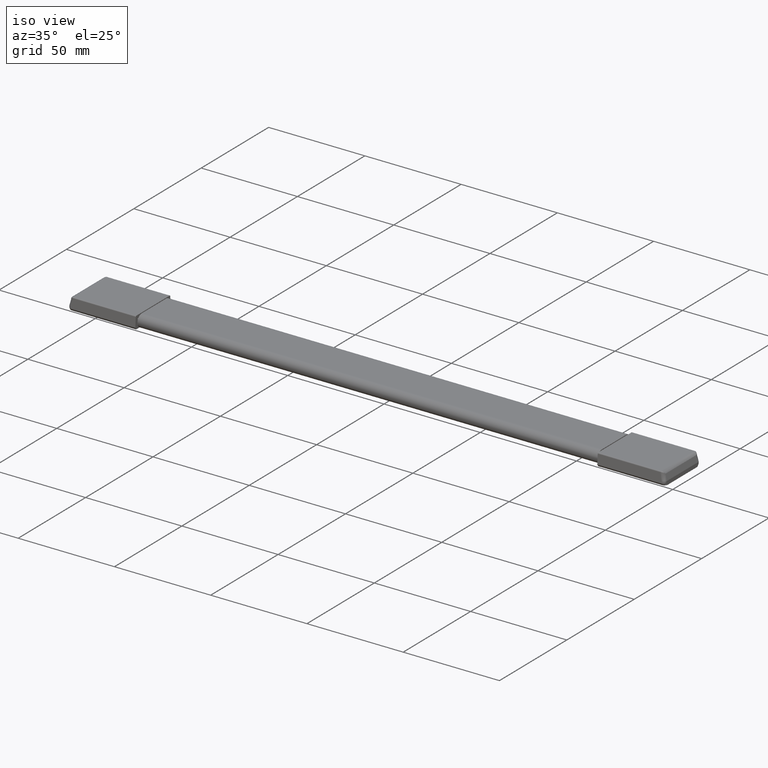
[diagram: clean part render]
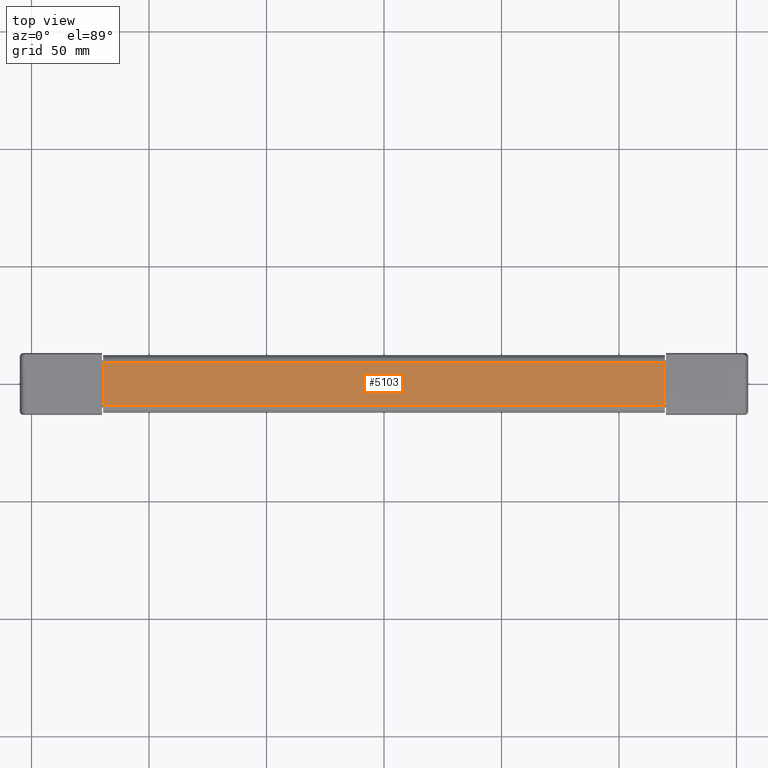
[diagram: tour spotlight — one face highlighted and labeled with its STEP entity id]
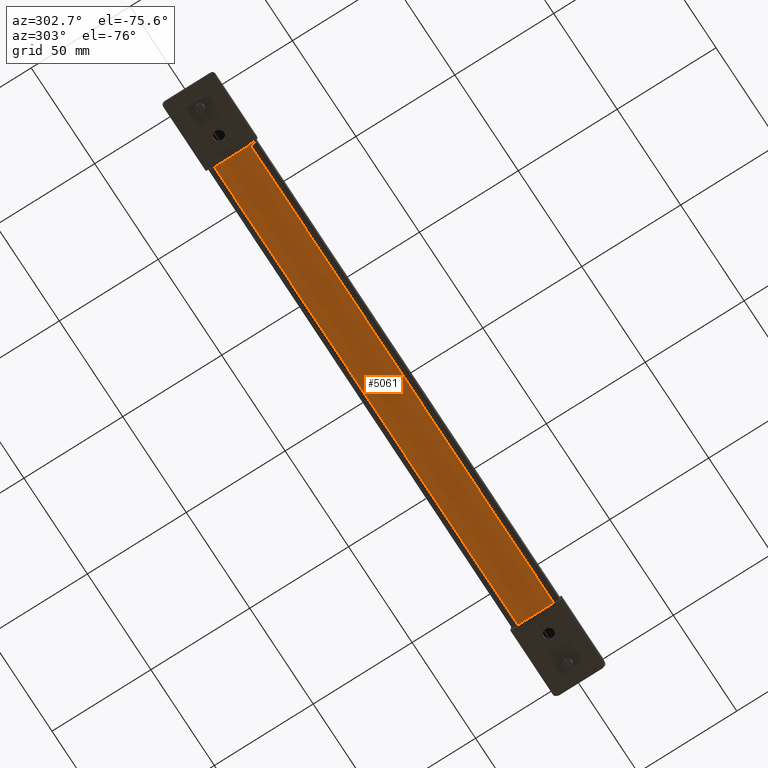
[diagram: tour spotlight — one face highlighted and labeled with its STEP entity id]
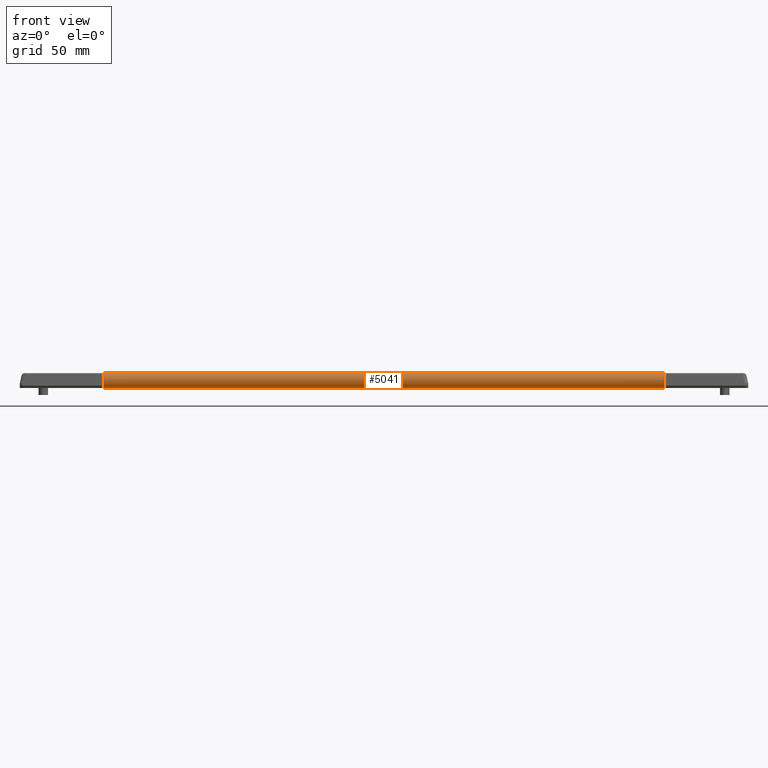
[diagram: tour spotlight — one face highlighted and labeled with its STEP entity id]
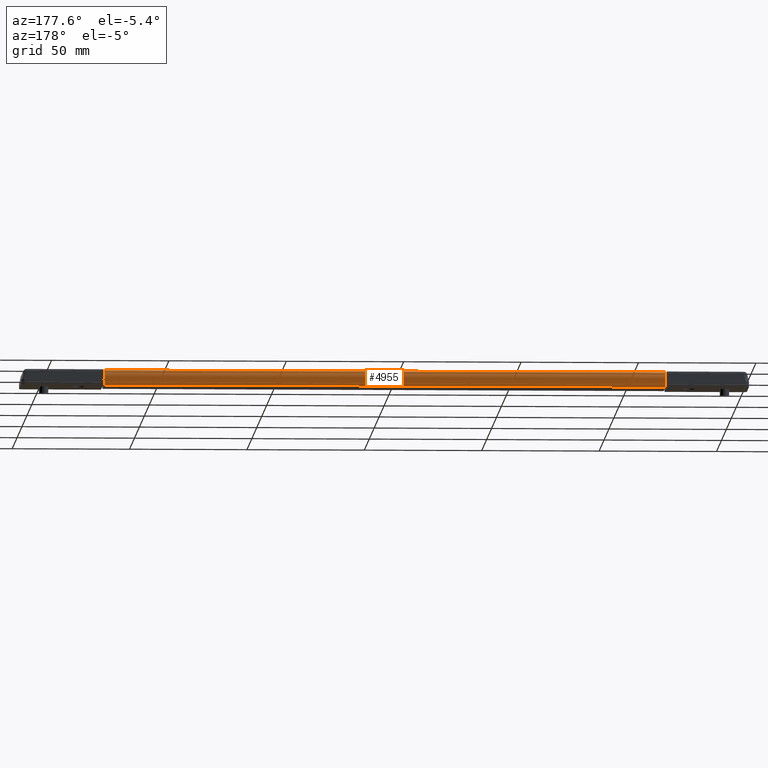
[diagram: tour spotlight — one face highlighted and labeled with its STEP entity id]
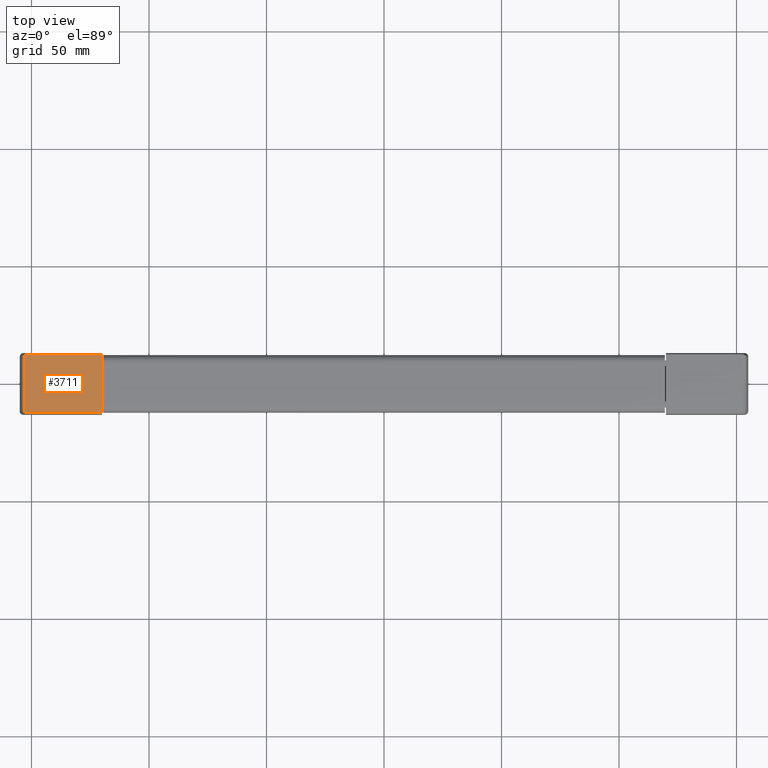
[diagram: tour spotlight — one face highlighted and labeled with its STEP entity id]
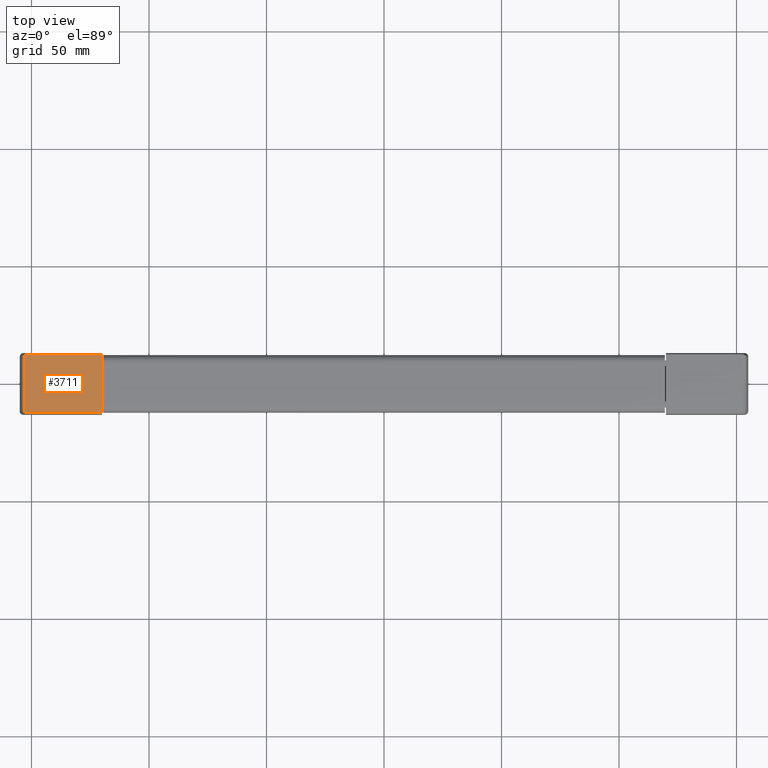
[diagram: tour spotlight — one face highlighted and labeled with its STEP entity id]
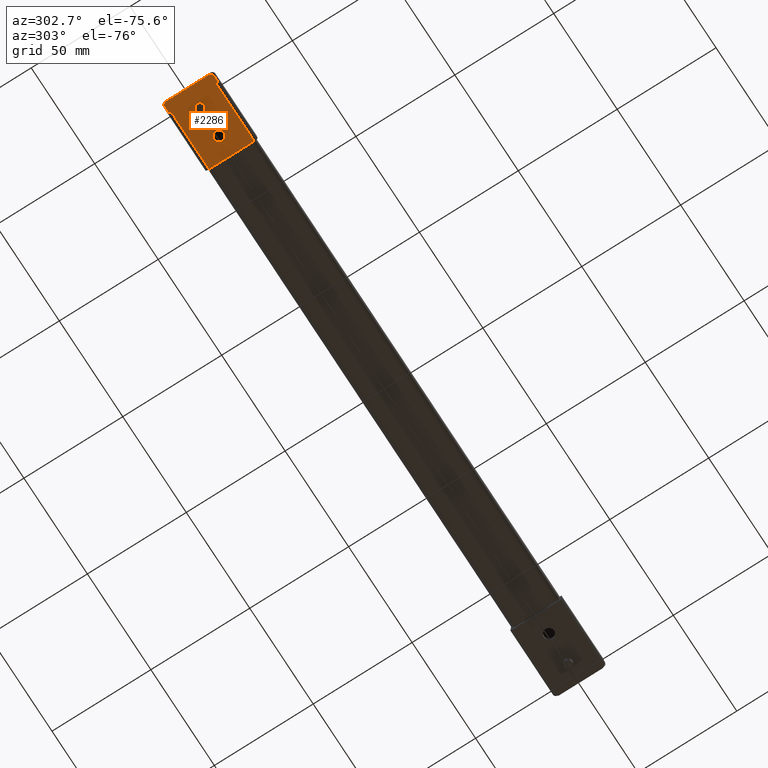
[diagram: tour spotlight — one face highlighted and labeled with its STEP entity id]
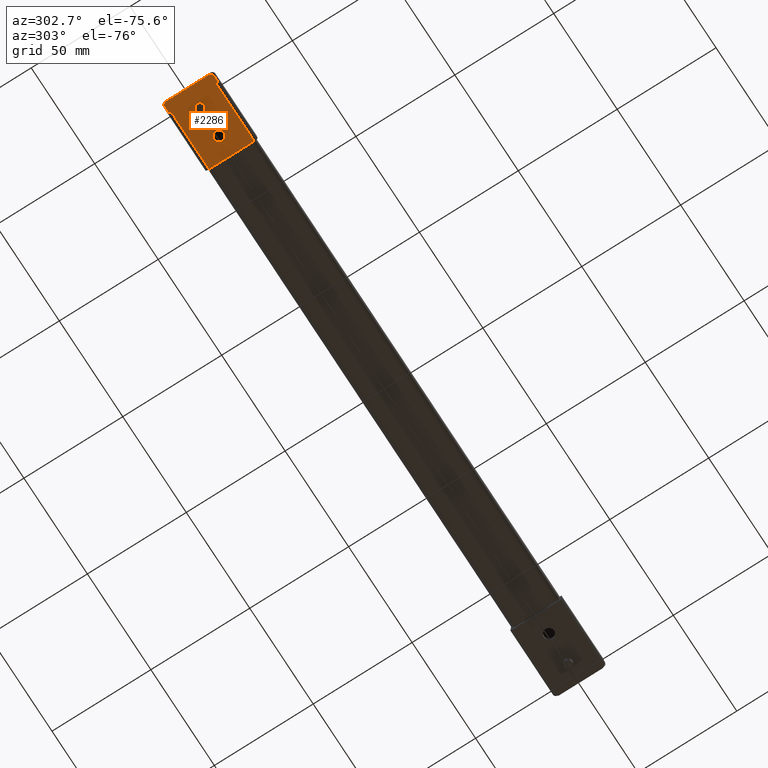
[diagram: tour spotlight — one face highlighted and labeled with its STEP entity id]
A machine part: a face-by-face anatomy tour. The part has 198 B-rep faces; the first image is the clean iso view, then the 8 largest visible faces are spotlighted one at a time (largest first), each with its STEP entity span.

Face 1 — top view, entity #5103. In plain terms, the highlighted face is a freeform B-spline surface patch.
Definition (entity closure, byte-faithful):
#4891=CARTESIAN_POINT('',(-119.500100000000000,-9.050000000000001,6.399999999999890));
#4892=VERTEX_POINT('',#4891);
#4935=CARTESIAN_POINT('',(119.500000000000000,-9.050000000000001,6.399999999999890));
#4936=VERTEX_POINT('',#4935);
#4948=CARTESIAN_POINT('',(-119.500100000000000,-9.050000000000001,6.399999999999890));
#4949=CARTESIAN_POINT('',(119.500000000000000,-9.050000000000001,6.399999999999890));
#4950=QUASI_UNIFORM_CURVE('',1,(#4948,#4949),.UNSPECIFIED.,.F.,.U.);
#4951=EDGE_CURVE('',#4892,#4936,#4950,.T.);
#4974=CARTESIAN_POINT('',(119.500000000000000,9.050000000000001,6.399999999999890));
#4975=VERTEX_POINT('',#4974);
#4976=CARTESIAN_POINT('',(-119.500100000000000,9.050000000000001,6.399999999999890));
#4977=VERTEX_POINT('',#4976);
#4978=CARTESIAN_POINT('',(119.500000000000000,9.050000000000001,6.399999999999890));
#4979=CARTESIAN_POINT('',(-119.500100000000000,9.050000000000001,6.399999999999890));
#4980=QUASI_UNIFORM_CURVE('',1,(#4978,#4979),.UNSPECIFIED.,.F.,.U.);
#4981=EDGE_CURVE('',#4975,#4977,#4980,.T.);
#5070=CARTESIAN_POINT('',(119.500000000000000,-9.050000000000001,6.399999999999890));
#5071=CARTESIAN_POINT('',(119.500000000000000,9.050000000000001,6.399999999999890));
#5072=QUASI_UNIFORM_CURVE('',1,(#5070,#5071),.UNSPECIFIED.,.F.,.U.);
#5073=EDGE_CURVE('',#4936,#4975,#5072,.T.);
#5088=CARTESIAN_POINT('',(-131.438154531771490,-9.954095304738386,6.399999999999890));
#5089=CARTESIAN_POINT('',(131.438060942253710,-9.954095304738386,6.399999999999890));
#5090=CARTESIAN_POINT('',(-131.438154531771490,9.954095466564997,6.399999999999890));
#5091=CARTESIAN_POINT('',(131.438060942253710,9.954095466564997,6.399999999999890));
#5092=B_SPLINE_SURFACE_WITH_KNOTS('',1,1,((#5088,#5090),(#5089,#5091)),.UNSPECIFIED.,.F.,.F.,.U.,(2,2),(2,2),(0.0,262.876215474025120),(0.0,19.908190771303381),.UNSPECIFIED.);
#5093=ORIENTED_EDGE('',*,*,#5073,.T.);
#5094=ORIENTED_EDGE('',*,*,#4981,.T.);
#5095=CARTESIAN_POINT('',(-119.500100000000000,-9.050000000000001,6.399999999999890));
#5096=CARTESIAN_POINT('',(-119.500100000000000,9.050000000000001,6.399999999999890));
#5097=QUASI_UNIFORM_CURVE('',1,(#5095,#5096),.UNSPECIFIED.,.F.,.U.);
#5098=EDGE_CURVE('',#4892,#4977,#5097,.T.);
#5099=ORIENTED_EDGE('',*,*,#5098,.F.);
#5100=ORIENTED_EDGE('',*,*,#4951,.T.);
#5101=EDGE_LOOP('',(#5093,#5094,#5099,#5100));
#5102=FACE_OUTER_BOUND('',#5101,.T.);
#5103=ADVANCED_FACE('',(#5102),#5092,.T.);

Face 2 — auxiliary view, entity #5061. In plain terms, the highlighted face is a freeform B-spline surface patch.
Definition (entity closure, byte-faithful):
#4904=CARTESIAN_POINT('',(-119.500100000000000,-9.050000000000001,0.0));
#4905=VERTEX_POINT('',#4904);
#4916=CARTESIAN_POINT('',(119.500000000000000,-9.050000000000001,0.0));
#4917=VERTEX_POINT('',#4916);
#4918=CARTESIAN_POINT('',(119.500000000000000,-9.050000000000001,0.0));
#4919=CARTESIAN_POINT('',(-119.500100000000000,-9.050000000000001,0.0));
#4920=QUASI_UNIFORM_CURVE('',1,(#4918,#4919),.UNSPECIFIED.,.F.,.U.);
#4921=EDGE_CURVE('',#4917,#4905,#4920,.T.);
#4996=CARTESIAN_POINT('',(119.500000000000000,9.050000000000001,0.0));
#4997=VERTEX_POINT('',#4996);
#5008=CARTESIAN_POINT('',(-119.500100000000000,9.050000000000001,0.0));
#5009=VERTEX_POINT('',#5008);
#5010=CARTESIAN_POINT('',(-119.500100000000000,9.050000000000001,0.0));
#5011=CARTESIAN_POINT('',(119.500000000000000,9.050000000000001,0.0));
#5012=QUASI_UNIFORM_CURVE('',1,(#5010,#5011),.UNSPECIFIED.,.F.,.U.);
#5013=EDGE_CURVE('',#5009,#4997,#5012,.T.);
#5042=CARTESIAN_POINT('',(131.438054531771510,-9.954095304738386,0.0));
#5043=CARTESIAN_POINT('',(-131.438160942253690,-9.954095304738386,0.0));
#5044=CARTESIAN_POINT('',(131.438054531771510,9.954095466564997,0.0));
#5045=CARTESIAN_POINT('',(-131.438160942253690,9.954095466564997,0.0));
#5046=B_SPLINE_SURFACE_WITH_KNOTS('',1,1,((#5042,#5044),(#5043,#5045)),.UNSPECIFIED.,.F.,.F.,.U.,(2,2),(2,2),(0.0,262.876215474025170),(0.0,19.908190771303381),.UNSPECIFIED.);
#5047=CARTESIAN_POINT('',(-119.500100000000000,-9.050000000000001,0.0));
#5048=CARTESIAN_POINT('',(-119.500100000000000,9.050000000000001,0.0));
#5049=QUASI_UNIFORM_CURVE('',1,(#5047,#5048),.UNSPECIFIED.,.F.,.U.);
#5050=EDGE_CURVE('',#4905,#5009,#5049,.T.);
#5051=ORIENTED_EDGE('',*,*,#5050,.T.);
#5052=ORIENTED_EDGE('',*,*,#5013,.T.);
#5053=CARTESIAN_POINT('',(119.500000000000000,-9.050000000000001,0.0));
#5054=CARTESIAN_POINT('',(119.500000000000000,9.050000000000001,0.0));
#5055=QUASI_UNIFORM_CURVE('',1,(#5053,#5054),.UNSPECIFIED.,.F.,.U.);
#5056=EDGE_CURVE('',#4917,#4997,#5055,.T.);
#5057=ORIENTED_EDGE('',*,*,#5056,.F.);
#5058=ORIENTED_EDGE('',*,*,#4921,.T.);
#5059=EDGE_LOOP('',(#5051,#5052,#5057,#5058));
#5060=FACE_OUTER_BOUND('',#5059,.T.);
#5061=ADVANCED_FACE('',(#5060),#5046,.T.);

Face 3 — front view, entity #5041. In plain terms, the highlighted face is a freeform B-spline surface patch.
Definition (entity closure, byte-faithful):
#4956=CARTESIAN_POINT('',(-125.475102500000010,9.022075086405208,6.399878153805237));
#4957=CARTESIAN_POINT('',(125.624377562500000,9.022075086405208,6.399878153805237));
#4958=CARTESIAN_POINT('',(-125.475102499999990,12.335645915106845,6.428795248342627));
#4959=CARTESIAN_POINT('',(125.624377562500000,12.335645915106845,6.428795248342627));
#4960=CARTESIAN_POINT('',(-125.475102500000010,12.248903439921779,3.116233765414692));
#4961=CARTESIAN_POINT('',(125.624377562500000,12.248903439921779,3.116233765414692));
#4962=CARTESIAN_POINT('',(-125.475102499999990,12.162160964736719,-0.196327717513243));
#4963=CARTESIAN_POINT('',(125.624377562500000,12.162160964736719,-0.196327717513243));
#4964=CARTESIAN_POINT('',(-125.475102500000010,8.854644673488455,0.005968645049917));
#4965=CARTESIAN_POINT('',(125.624377562500000,8.854644673488455,0.005968645049917));
#4973=(BOUNDED_SURFACE()B_SPLINE_SURFACE(1,2,((#4956,#4958,#4960,#4962,#4964),(#4957,#4959,#4961,#4963,#4965)),.UNSPECIFIED.,.F.,.F.,.U.)B_SPLINE_SURFACE_WITH_KNOTS((2,2),(3,2,3),(0.0,251.099480062499990),(0.0,5.433277647482941,10.866555294965879),.UNSPECIFIED.)GEOMETRIC_REPRESENTATION_ITEM()RATIONAL_B_SPLINE_SURFACE(((1.0,0.694658370458997,1.0,0.694658370458997,1.0),(1.0,0.694658370458997,1.0,0.694658370458997,1.0)))REPRESENTATION_ITEM('')SURFACE());
#4974=CARTESIAN_POINT('',(119.500000000000000,9.050000000000001,6.399999999999890));
#4975=VERTEX_POINT('',#4974);
#4976=CARTESIAN_POINT('',(-119.500100000000000,9.050000000000001,6.399999999999890));
#4977=VERTEX_POINT('',#4976);
#4978=CARTESIAN_POINT('',(119.500000000000000,9.050000000000001,6.399999999999890));
#4979=CARTESIAN_POINT('',(-119.500100000000000,9.050000000000001,6.399999999999890));
#4980=QUASI_UNIFORM_CURVE('',1,(#4978,#4979),.UNSPECIFIED.,.F.,.U.);
#4981=EDGE_CURVE('',#4975,#4977,#4980,.T.);
#4982=ORIENTED_EDGE('',*,*,#4981,.F.);
#4983=CARTESIAN_POINT('',(119.500000000000000,12.250000000000000,3.199999838802678));
#4984=VERTEX_POINT('',#4983);
#4985=CARTESIAN_POINT('',(119.500000000000000,12.250000000000000,3.199999838802678));
#4986=CARTESIAN_POINT('',(119.499999999999800,12.251157421761061,3.723847466013402));
#4987=CARTESIAN_POINT('',(119.500000000000100,12.032982672928410,4.586600618484582));
#4988=CARTESIAN_POINT('',(119.500000000000100,11.374562349492351,5.451645154374156));
#4989=CARTESIAN_POINT('',(119.500000000000000,10.710877780129939,5.969534417540848));
#4990=CARTESIAN_POINT('',(119.499999999999600,9.966252799881914,6.310631221122959));
#4991=CARTESIAN_POINT('',(119.500000000000500,9.364167671165660,6.400121527903637));
#4992=CARTESIAN_POINT('',(119.500000000000000,9.050000000000001,6.399999999999890));
#4993=B_SPLINE_CURVE_WITH_KNOTS('',3,(#4985,#4986,#4987,#4988,#4989,#4990,#4991,#4992),.UNSPECIFIED.,.F.,.U.,(4,1,1,1,1,4),(0.000000790883251,1.570855225019697,2.591761956405681,3.220157359416366,4.084189791484714,5.026674472876823),.UNSPECIFIED.);
#4994=EDGE_CURVE('',#4984,#4975,#4993,.T.);
#4995=ORIENTED_EDGE('',*,*,#4994,.F.);
#4996=CARTESIAN_POINT('',(119.500000000000000,9.050000000000001,0.0));
#4997=VERTEX_POINT('',#4996);
#4998=CARTESIAN_POINT('',(119.500000000000000,9.050000000000001,0.0));
#4999=CARTESIAN_POINT('',(119.500000000000000,9.573780010682349,-0.001058182444386));
#5000=CARTESIAN_POINT('',(119.500000000000000,10.515223788117110,0.236596742547658));
#5001=CARTESIAN_POINT('',(119.500000000000100,11.546772232225351,1.083191429220035));
#5002=CARTESIAN_POINT('',(119.500000000000000,12.122712843128371,2.100542892054718));
#5003=CARTESIAN_POINT('',(119.500000000000000,12.250214109656270,2.833464886304231));
#5004=CARTESIAN_POINT('',(119.500000000000000,12.250000000000000,3.199999838802678));
#5005=B_SPLINE_CURVE_WITH_KNOTS('',3,(#4998,#4999,#5000,#5001,#5002,#5003,#5004),.UNSPECIFIED.,.F.,.U.,(4,1,1,1,4),(0.000000791102843,1.570855168378917,2.827407893212334,3.927103416553163,5.026674291165393),.UNSPECIFIED.);
#5006=EDGE_CURVE('',#4997,#4984,#5005,.T.);
#5007=ORIENTED_EDGE('',*,*,#5006,.F.);
#5008=CARTESIAN_POINT('',(-119.500100000000000,9.050000000000001,0.0));
#5009=VERTEX_POINT('',#5008);
#5010=CARTESIAN_POINT('',(-119.500100000000000,9.050000000000001,0.0));
#5011=CARTESIAN_POINT('',(119.500000000000000,9.050000000000001,0.0));
#5012=QUASI_UNIFORM_CURVE('',1,(#5010,#5011),.UNSPECIFIED.,.F.,.U.);
#5013=EDGE_CURVE('',#5009,#4997,#5012,.T.);
#5014=ORIENTED_EDGE('',*,*,#5013,.F.);
#5015=CARTESIAN_POINT('',(-119.500100000000000,12.250000000000000,3.200000161197100));
#5016=VERTEX_POINT('',#5015);
#5017=CARTESIAN_POINT('',(-119.500100000000000,12.250000000000000,3.200000161197100));
#5018=CARTESIAN_POINT('',(-119.500100000000000,12.250143717772341,2.885830548849435));
#5019=CARTESIAN_POINT('',(-119.500100000000200,12.160589366575440,2.283757213776207));
#5020=CARTESIAN_POINT('',(-119.500100000000000,11.764673661874090,1.418993535808785));
#5021=CARTESIAN_POINT('',(-119.500100000000700,11.167488820963261,0.743712198359514));
#5022=CARTESIAN_POINT('',(-119.500099999997800,10.253750621514691,0.164944668976696));
#5023=CARTESIAN_POINT('',(-119.500100000002310,9.521382448280031,-0.000637182421742));
#5024=CARTESIAN_POINT('',(-119.500100000000000,9.050000000000001,0.0));
#5025=B_SPLINE_CURVE_WITH_KNOTS('',3,(#5017,#5018,#5019,#5020,#5021,#5022,#5023,#5024),.UNSPECIFIED.,.F.,.U.,(4,1,1,1,1,4),(0.000000790883220,0.942489710874650,1.806518850745714,2.827407995725327,3.612908555119230,5.026674472876755),.UNSPECIFIED.);
#5026=EDGE_CURVE('',#5016,#5009,#5025,.T.);
#5027=ORIENTED_EDGE('',*,*,#5026,.F.);
#5028=CARTESIAN_POINT('',(-119.500100000000000,9.050000000000001,6.399999999999890));
#5029=CARTESIAN_POINT('',(-119.500100000000300,9.495187551844174,6.400579635761000));
#5030=CARTESIAN_POINT('',(-119.500099999999700,10.201450827422761,6.249984878724010));
#5031=CARTESIAN_POINT('',(-119.500100000000300,11.129225084420350,5.694047907795342));
#5032=CARTESIAN_POINT('',(-119.500100000000000,11.753705545008300,5.005094705636897));
#5033=CARTESIAN_POINT('',(-119.500099999999900,12.160582759907539,4.116232736460602));
#5034=CARTESIAN_POINT('',(-119.500100000000100,12.250142724171599,3.514170183681183));
#5035=CARTESIAN_POINT('',(-119.500100000000000,12.250000000000000,3.200000161197100));
#5036=B_SPLINE_CURVE_WITH_KNOTS('',3,(#5028,#5029,#5030,#5031,#5032,#5033,#5034,#5035),.UNSPECIFIED.,.F.,.U.,(4,1,1,1,1,4),(0.000000791102996,1.335214441192179,2.120637416624929,3.220157242711298,4.084189643673483,5.026674291165457),.UNSPECIFIED.);
#5037=EDGE_CURVE('',#4977,#5016,#5036,.T.);
#5038=ORIENTED_EDGE('',*,*,#5037,.F.);
#5039=EDGE_LOOP('',(#4982,#4995,#5007,#5014,#5027,#5038));
#5040=FACE_OUTER_BOUND('',#5039,.T.);
#5041=ADVANCED_FACE('',(#5040),#4973,.T.);

Face 4 — auxiliary view, entity #4955. In plain terms, the highlighted face is a freeform B-spline surface patch.
Definition (entity closure, byte-faithful):
#4871=CARTESIAN_POINT('',(125.475002500000000,-9.022075086405208,6.399878153805237));
#4872=CARTESIAN_POINT('',(-125.624477562500000,-9.022075086405208,6.399878153805237));
#4873=CARTESIAN_POINT('',(125.475002500000000,-12.335645915106845,6.428795248342627));
#4874=CARTESIAN_POINT('',(-125.624477562499990,-12.335645915106845,6.428795248342627));
#4875=CARTESIAN_POINT('',(125.475002500000000,-12.248903439921779,3.116233765414692));
#4876=CARTESIAN_POINT('',(-125.624477562500000,-12.248903439921779,3.116233765414692));
#4877=CARTESIAN_POINT('',(125.475002500000000,-12.162160964736719,-0.196327717513243));
#4878=CARTESIAN_POINT('',(-125.624477562499990,-12.162160964736719,-0.196327717513243));
#4879=CARTESIAN_POINT('',(125.475002500000000,-8.854644673488455,0.005968645049917));
#4880=CARTESIAN_POINT('',(-125.624477562500000,-8.854644673488455,0.005968645049917));
#4888=(BOUNDED_SURFACE()B_SPLINE_SURFACE(1,2,((#4871,#4873,#4875,#4877,#4879),(#4872,#4874,#4876,#4878,#4880)),.UNSPECIFIED.,.F.,.F.,.U.)B_SPLINE_SURFACE_WITH_KNOTS((2,2),(3,2,3),(0.0,251.099480062499990),(0.0,5.433277647482941,10.866555294965879),.UNSPECIFIED.)GEOMETRIC_REPRESENTATION_ITEM()RATIONAL_B_SPLINE_SURFACE(((1.0,0.694658370458997,1.0,0.694658370458997,1.0),(1.0,0.694658370458997,1.0,0.694658370458997,1.0)))REPRESENTATION_ITEM('')SURFACE());
#4889=CARTESIAN_POINT('',(-119.500100000000000,-12.250000000000000,3.199999838802678));
#4890=VERTEX_POINT('',#4889);
#4891=CARTESIAN_POINT('',(-119.500100000000000,-9.050000000000001,6.399999999999890));
#4892=VERTEX_POINT('',#4891);
#4893=CARTESIAN_POINT('',(-119.500100000000000,-12.250000000000000,3.199999838802678));
#4894=CARTESIAN_POINT('',(-119.500100000000300,-12.251145158350591,3.723828934302190));
#4895=CARTESIAN_POINT('',(-119.500099999999700,-12.026404840836740,4.612811655708411));
#4896=CARTESIAN_POINT('',(-119.500099999999800,-11.356135336434191,5.471459064313307));
#4897=CARTESIAN_POINT('',(-119.500100000000400,-10.686832213138590,5.980532581487004));
#4898=CARTESIAN_POINT('',(-119.500099999999410,-9.966254739939826,6.310631473046833));
#4899=CARTESIAN_POINT('',(-119.500100000000600,-9.364166751974485,6.400120849343366));
#4900=CARTESIAN_POINT('',(-119.500100000000000,-9.050000000000001,6.399999999999890));
#4901=B_SPLINE_CURVE_WITH_KNOTS('',3,(#4893,#4894,#4895,#4896,#4897,#4898,#4899,#4900),.UNSPECIFIED.,.F.,.U.,(4,1,1,1,1,4),(0.000000790883251,1.570855225019697,2.670345584532851,3.220157359416366,4.084189791484714,5.026674472876823),.UNSPECIFIED.);
#4902=EDGE_CURVE('',#4890,#4892,#4901,.T.);
#4903=ORIENTED_EDGE('',*,*,#4902,.F.);
#4904=CARTESIAN_POINT('',(-119.500100000000000,-9.050000000000001,0.0));
#4905=VERTEX_POINT('',#4904);
#4906=CARTESIAN_POINT('',(-119.500100000000000,-9.050000000000001,0.0));
#4907=CARTESIAN_POINT('',(-119.500100000000000,-9.573780010682354,-0.001058182444386));
#4908=CARTESIAN_POINT('',(-119.500100000000000,-10.515223788117121,0.236596742547658));
#4909=CARTESIAN_POINT('',(-119.500100000000100,-11.546772232225351,1.083191429220035));
#4910=CARTESIAN_POINT('',(-119.500100000000000,-12.122712843128371,2.100542892054718));
#4911=CARTESIAN_POINT('',(-119.500100000000000,-12.250214109656270,2.833464886304231));
#4912=CARTESIAN_POINT('',(-119.500100000000000,-12.250000000000000,3.199999838802678));
#4913=B_SPLINE_CURVE_WITH_KNOTS('',3,(#4906,#4907,#4908,#4909,#4910,#4911,#4912),.UNSPECIFIED.,.F.,.U.,(4,1,1,1,4),(0.000000791102843,1.570855168378917,2.827407893212334,3.927103416553163,5.026674291165393),.UNSPECIFIED.);
#4914=EDGE_CURVE('',#4905,#4890,#4913,.T.);
#4915=ORIENTED_EDGE('',*,*,#4914,.F.);
#4916=CARTESIAN_POINT('',(119.500000000000000,-9.050000000000001,0.0));
#4917=VERTEX_POINT('',#4916);
#4918=CARTESIAN_POINT('',(119.500000000000000,-9.050000000000001,0.0));
#4919=CARTESIAN_POINT('',(-119.500100000000000,-9.050000000000001,0.0));
#4920=QUASI_UNIFORM_CURVE('',1,(#4918,#4919),.UNSPECIFIED.,.F.,.U.);
#4921=EDGE_CURVE('',#4917,#4905,#4920,.T.);
#4922=ORIENTED_EDGE('',*,*,#4921,.F.);
#4923=CARTESIAN_POINT('',(119.500000000000000,-12.250000000000000,3.200000161197100));
#4924=VERTEX_POINT('',#4923);
#4925=CARTESIAN_POINT('',(119.500000000000000,-12.250000000000000,3.200000161197100));
#4926=CARTESIAN_POINT('',(119.500000000000100,-12.251056152100951,2.676272491142907));
#4927=CARTESIAN_POINT('',(119.499999999999600,-12.013435942478420,1.734614177370550));
#4928=CARTESIAN_POINT('',(119.500000000000700,-11.234467141000501,0.786004190871501));
#4929=CARTESIAN_POINT('',(119.499999999998200,-10.253778481857770,0.164896951527481));
#4930=CARTESIAN_POINT('',(119.500000000002300,-9.521369203489142,-0.000622116148930));
#4931=CARTESIAN_POINT('',(119.500000000000000,-9.050000000000001,0.0));
#4932=B_SPLINE_CURVE_WITH_KNOTS('',3,(#4925,#4926,#4927,#4928,#4929,#4930,#4931),.UNSPECIFIED.,.F.,.U.,(4,1,1,1,4),(0.000000790883220,1.570855225019546,2.827407995725327,3.612908555119230,5.026674472876755),.UNSPECIFIED.);
#4933=EDGE_CURVE('',#4924,#4917,#4932,.T.);
#4934=ORIENTED_EDGE('',*,*,#4933,.F.);
#4935=CARTESIAN_POINT('',(119.500000000000000,-9.050000000000001,6.399999999999890));
#4936=VERTEX_POINT('',#4935);
#4937=CARTESIAN_POINT('',(119.500000000000000,-9.050000000000001,6.399999999999890));
#4938=CARTESIAN_POINT('',(119.500000000000300,-9.495187551844170,6.400579635761002));
#4939=CARTESIAN_POINT('',(119.499999999999600,-10.201450827422770,6.249984878724008));
#4940=CARTESIAN_POINT('',(119.500000000000300,-11.129225084420350,5.694047907795345));
#4941=CARTESIAN_POINT('',(119.499999999999900,-11.753705545008300,5.005094705636894));
#4942=CARTESIAN_POINT('',(119.499999999999900,-12.160582759907539,4.116232736460606));
#4943=CARTESIAN_POINT('',(119.500000000000100,-12.250142724171599,3.514170183681181));
#4944=CARTESIAN_POINT('',(119.500000000000000,-12.250000000000000,3.200000161197100));
#4945=B_SPLINE_CURVE_WITH_KNOTS('',3,(#4937,#4938,#4939,#4940,#4941,#4942,#4943,#4944),.UNSPECIFIED.,.F.,.U.,(4,1,1,1,1,4),(0.000000791102996,1.335214441192179,2.120637416624929,3.220157242711298,4.084189643673483,5.026674291165457),.UNSPECIFIED.);
#4946=EDGE_CURVE('',#4936,#4924,#4945,.T.);
#4947=ORIENTED_EDGE('',*,*,#4946,.F.);
#4948=CARTESIAN_POINT('',(-119.500100000000000,-9.050000000000001,6.399999999999890));
#4949=CARTESIAN_POINT('',(119.500000000000000,-9.050000000000001,6.399999999999890));
#4950=QUASI_UNIFORM_CURVE('',1,(#4948,#4949),.UNSPECIFIED.,.F.,.U.);
#4951=EDGE_CURVE('',#4892,#4936,#4950,.T.);
#4952=ORIENTED_EDGE('',*,*,#4951,.F.);
#4953=EDGE_LOOP('',(#4903,#4915,#4922,#4934,#4947,#4952));
#4954=FACE_OUTER_BOUND('',#4953,.T.);
#4955=ADVANCED_FACE('',(#4954),#4888,.T.);

Face 5 — top view, entity #3711. In plain terms, the highlighted face is a freeform B-spline surface patch.
Definition (entity closure, byte-faithful):
#3164=CARTESIAN_POINT('',(152.802429922060500,12.264849851784000,6.399999999999890));
#3165=VERTEX_POINT('',#3164);
#3166=CARTESIAN_POINT('',(152.591849282425500,12.286296928237620,6.399999999999890));
#3167=VERTEX_POINT('',#3166);
#3168=CARTESIAN_POINT('',(152.802429922060500,12.264849851784000,6.399999999999890));
#3169=CARTESIAN_POINT('',(152.591849282425500,12.286296928237620,6.399999999999890));
#3170=QUASI_UNIFORM_CURVE('',1,(#3168,#3169),.UNSPECIFIED.,.F.,.U.);
#3171=EDGE_CURVE('',#3165,#3167,#3170,.T.);
#3342=CARTESIAN_POINT('',(152.802429922060500,-12.263860737966899,6.399999999999890));
#3343=VERTEX_POINT('',#3342);
#3418=CARTESIAN_POINT('',(152.591906570368000,-12.285296692251020,6.399999999999890));
#3419=VERTEX_POINT('',#3418);
#3420=CARTESIAN_POINT('',(152.591906570368000,-12.285296692251020,6.399999999999890));
#3421=CARTESIAN_POINT('',(152.802429922060500,-12.263860737966899,6.399999999999890));
#3422=QUASI_UNIFORM_CURVE('',1,(#3420,#3421),.UNSPECIFIED.,.F.,.U.);
#3423=EDGE_CURVE('',#3419,#3343,#3422,.T.);
#3460=CARTESIAN_POINT('',(120.0,-12.285296692251061,6.399999999999890));
#3461=VERTEX_POINT('',#3460);
#3462=CARTESIAN_POINT('',(120.0,-12.285296692251061,6.399999999999890));
#3463=CARTESIAN_POINT('',(152.591906570368000,-12.285296692251020,6.399999999999890));
#3464=QUASI_UNIFORM_CURVE('',1,(#3462,#3463),.UNSPECIFIED.,.F.,.U.);
#3465=EDGE_CURVE('',#3461,#3419,#3464,.T.);
#3493=CARTESIAN_POINT('',(120.0,12.286296928237620,6.399999999999890));
#3494=VERTEX_POINT('',#3493);
#3495=CARTESIAN_POINT('',(152.591849282425500,12.286296928237620,6.399999999999890));
#3496=CARTESIAN_POINT('',(120.0,12.286296928237620,6.399999999999890));
#3497=QUASI_UNIFORM_CURVE('',1,(#3495,#3496),.UNSPECIFIED.,.F.,.U.);
#3498=EDGE_CURVE('',#3167,#3494,#3497,.T.);
#3540=CARTESIAN_POINT('',(152.802429922060500,-12.263860737966899,6.399999999999890));
#3541=CARTESIAN_POINT('',(152.802429922060500,12.264849851784000,6.399999999999890));
#3542=QUASI_UNIFORM_CURVE('',1,(#3540,#3541),.UNSPECIFIED.,.F.,.U.);
#3543=EDGE_CURVE('',#3343,#3165,#3542,.T.);
#3669=CARTESIAN_POINT('',(120.0,12.286296928237620,6.399999999999890));
#3670=CARTESIAN_POINT('',(120.0,-12.285296692251061,6.399999999999890));
#3671=QUASI_UNIFORM_CURVE('',1,(#3669,#3670),.UNSPECIFIED.,.F.,.U.);
#3672=EDGE_CURVE('',#3494,#3461,#3671,.T.);
#3698=CARTESIAN_POINT('',(118.361518806163900,13.513647981956520,6.399999999999890));
#3699=CARTESIAN_POINT('',(118.361518806163900,-13.512648405031451,6.399999999999890));
#3700=CARTESIAN_POINT('',(154.440909649513710,13.513647981956520,6.399999999999890));
#3701=CARTESIAN_POINT('',(154.440909649513710,-13.512648405031451,6.399999999999890));
#3702=B_SPLINE_SURFACE_WITH_KNOTS('',1,1,((#3698,#3700),(#3699,#3701)),.UNSPECIFIED.,.F.,.F.,.U.,(2,2),(2,2),(0.0,27.026296386987969),(0.0,36.079390843349870),.UNSPECIFIED.);
#3703=ORIENTED_EDGE('',*,*,#3543,.T.);
#3704=ORIENTED_EDGE('',*,*,#3171,.T.);
#3705=ORIENTED_EDGE('',*,*,#3498,.T.);
#3706=ORIENTED_EDGE('',*,*,#3672,.T.);
#3707=ORIENTED_EDGE('',*,*,#3465,.T.);
#3708=ORIENTED_EDGE('',*,*,#3423,.T.);
#3709=EDGE_LOOP('',(#3703,#3704,#3705,#3706,#3707,#3708));
#3710=FACE_OUTER_BOUND('',#3709,.T.);
#3711=ADVANCED_FACE('',(#3710),#3702,.T.);

Face 6 — top view, entity #3711. In plain terms, the highlighted face is a freeform B-spline surface patch.
Definition (entity closure, byte-faithful):
#3164=CARTESIAN_POINT('',(152.802429922060500,12.264849851784000,6.399999999999890));
#3165=VERTEX_POINT('',#3164);
#3166=CARTESIAN_POINT('',(152.591849282425500,12.286296928237620,6.399999999999890));
#3167=VERTEX_POINT('',#3166);
#3168=CARTESIAN_POINT('',(152.802429922060500,12.264849851784000,6.399999999999890));
#3169=CARTESIAN_POINT('',(152.591849282425500,12.286296928237620,6.399999999999890));
#3170=QUASI_UNIFORM_CURVE('',1,(#3168,#3169),.UNSPECIFIED.,.F.,.U.);
#3171=EDGE_CURVE('',#3165,#3167,#3170,.T.);
#3342=CARTESIAN_POINT('',(152.802429922060500,-12.263860737966899,6.399999999999890));
#3343=VERTEX_POINT('',#3342);
#3418=CARTESIAN_POINT('',(152.591906570368000,-12.285296692251020,6.399999999999890));
#3419=VERTEX_POINT('',#3418);
#3420=CARTESIAN_POINT('',(152.591906570368000,-12.285296692251020,6.399999999999890));
#3421=CARTESIAN_POINT('',(152.802429922060500,-12.263860737966899,6.399999999999890));
#3422=QUASI_UNIFORM_CURVE('',1,(#3420,#3421),.UNSPECIFIED.,.F.,.U.);
#3423=EDGE_CURVE('',#3419,#3343,#3422,.T.);
#3460=CARTESIAN_POINT('',(120.0,-12.285296692251061,6.399999999999890));
#3461=VERTEX_POINT('',#3460);
#3462=CARTESIAN_POINT('',(120.0,-12.285296692251061,6.399999999999890));
#3463=CARTESIAN_POINT('',(152.591906570368000,-12.285296692251020,6.399999999999890));
#3464=QUASI_UNIFORM_CURVE('',1,(#3462,#3463),.UNSPECIFIED.,.F.,.U.);
#3465=EDGE_CURVE('',#3461,#3419,#3464,.T.);
#3493=CARTESIAN_POINT('',(120.0,12.286296928237620,6.399999999999890));
#3494=VERTEX_POINT('',#3493);
#3495=CARTESIAN_POINT('',(152.591849282425500,12.286296928237620,6.399999999999890));
#3496=CARTESIAN_POINT('',(120.0,12.286296928237620,6.399999999999890));
#3497=QUASI_UNIFORM_CURVE('',1,(#3495,#3496),.UNSPECIFIED.,.F.,.U.);
#3498=EDGE_CURVE('',#3167,#3494,#3497,.T.);
#3540=CARTESIAN_POINT('',(152.802429922060500,-12.263860737966899,6.399999999999890));
#3541=CARTESIAN_POINT('',(152.802429922060500,12.264849851784000,6.399999999999890));
#3542=QUASI_UNIFORM_CURVE('',1,(#3540,#3541),.UNSPECIFIED.,.F.,.U.);
#3543=EDGE_CURVE('',#3343,#3165,#3542,.T.);
#3669=CARTESIAN_POINT('',(120.0,12.286296928237620,6.399999999999890));
#3670=CARTESIAN_POINT('',(120.0,-12.285296692251061,6.399999999999890));
#3671=QUASI_UNIFORM_CURVE('',1,(#3669,#3670),.UNSPECIFIED.,.F.,.U.);
#3672=EDGE_CURVE('',#3494,#3461,#3671,.T.);
#3698=CARTESIAN_POINT('',(118.361518806163900,13.513647981956520,6.399999999999890));
#3699=CARTESIAN_POINT('',(118.361518806163900,-13.512648405031451,6.399999999999890));
#3700=CARTESIAN_POINT('',(154.440909649513710,13.513647981956520,6.399999999999890));
#3701=CARTESIAN_POINT('',(154.440909649513710,-13.512648405031451,6.399999999999890));
#3702=B_SPLINE_SURFACE_WITH_KNOTS('',1,1,((#3698,#3700),(#3699,#3701)),.UNSPECIFIED.,.F.,.F.,.U.,(2,2),(2,2),(0.0,27.026296386987969),(0.0,36.079390843349870),.UNSPECIFIED.);
#3703=ORIENTED_EDGE('',*,*,#3543,.T.);
#3704=ORIENTED_EDGE('',*,*,#3171,.T.);
#3705=ORIENTED_EDGE('',*,*,#3498,.T.);
#3706=ORIENTED_EDGE('',*,*,#3672,.T.);
#3707=ORIENTED_EDGE('',*,*,#3465,.T.);
#3708=ORIENTED_EDGE('',*,*,#3423,.T.);
#3709=EDGE_LOOP('',(#3703,#3704,#3705,#3706,#3707,#3708));
#3710=FACE_OUTER_BOUND('',#3709,.T.);
#3711=ADVANCED_FACE('',(#3710),#3702,.T.);

Face 7 — auxiliary view, entity #2286. In plain terms, the highlighted face is a freeform B-spline surface patch.
Definition (entity closure, byte-faithful):
#1311=CARTESIAN_POINT('',(131.678929386213810,1.985244544592867,-5.823263E-012));
#1312=VERTEX_POINT('',#1311);
#1313=CARTESIAN_POINT('',(132.599999999999990,0.0,0.0));
#1314=VERTEX_POINT('',#1313);
#1315=CARTESIAN_POINT('',(131.678929386213810,1.985244544592867,-5.823263E-012));
#1316=CARTESIAN_POINT('',(131.948770740571210,1.757600350169130,-5.155520E-012));
#1317=CARTESIAN_POINT('',(132.422452943644490,1.152310056412257,-3.380039E-012));
#1318=CARTESIAN_POINT('',(132.600741507656290,0.400131707261390,-1.173695E-012));
#1319=CARTESIAN_POINT('',(132.599999999999990,0.0,0.0));
#1320=B_SPLINE_CURVE_WITH_KNOTS('',3,(#1315,#1316,#1317,#1318,#1319),.UNSPECIFIED.,.F.,.U.,(4,1,4),(0.000000240512048,1.058939655593868,2.258953411554191),.UNSPECIFIED.);
#1321=EDGE_CURVE('',#1312,#1314,#1320,.T.);
#1323=CARTESIAN_POINT('',(130.000000167144410,-2.599999999999995,0.0));
#1324=VERTEX_POINT('',#1323);
#1325=CARTESIAN_POINT('',(132.599999999999990,0.0,0.0));
#1326=CARTESIAN_POINT('',(132.600438262601100,-0.361658982032843,0.0));
#1327=CARTESIAN_POINT('',(132.460169645994510,-1.020802726986552,0.0));
#1328=CARTESIAN_POINT('',(131.980395905299590,-1.738630110509019,0.0));
#1329=CARTESIAN_POINT('',(131.374399060823010,-2.248541622127342,0.0));
#1330=CARTESIAN_POINT('',(130.723271775656710,-2.537125479429936,0.0));
#1331=CARTESIAN_POINT('',(130.212689488176810,-2.600033560493541,0.0));
#1332=CARTESIAN_POINT('',(130.000000167144410,-2.599999999999995,0.0));
#1333=B_SPLINE_CURVE_WITH_KNOTS('',3,(#1325,#1326,#1327,#1328,#1329,#1330,#1331,#1332),.UNSPECIFIED.,.F.,.U.,(4,1,1,1,1,4),(0.000000823022700,1.084860497315088,1.978395171024723,2.552552548718048,3.446067334129076,4.084172841226940),.UNSPECIFIED.);
#1334=EDGE_CURVE('',#1314,#1324,#1333,.T.);
#1336=CARTESIAN_POINT('',(127.400000000000010,0.0,0.0));
#1337=VERTEX_POINT('',#1336);
#1338=CARTESIAN_POINT('',(130.000000167144410,-2.599999999999995,0.0));
#1339=CARTESIAN_POINT('',(129.638303573054400,-2.600477109008514,0.0));
#1340=CARTESIAN_POINT('',(129.043101625964310,-2.473643132389978,0.0));
#1341=CARTESIAN_POINT('',(128.385301495739410,-2.068123216728540,0.0));
#1342=CARTESIAN_POINT('',(127.871186341076590,-1.554392142589982,0.0));
#1343=CARTESIAN_POINT('',(127.495808112320700,-0.872127782837737,0.0));
#1344=CARTESIAN_POINT('',(127.399883906537600,-0.276523339331210,0.0));
#1345=CARTESIAN_POINT('',(127.400000000000010,0.0,0.0));
#1346=B_SPLINE_CURVE_WITH_KNOTS('',3,(#1338,#1339,#1340,#1341,#1342,#1343,#1344,#1345),.UNSPECIFIED.,.F.,.U.,(4,1,1,1,1,4),(0.000000822775437,1.084860547152339,1.786879697120849,2.297294155712121,3.254584424161877,4.084173029642403),.UNSPECIFIED.);
#1347=EDGE_CURVE('',#1324,#1337,#1346,.T.);
#1349=CARTESIAN_POINT('',(128.114027061102090,1.789722406054733,3.082413E-012));
#1350=VERTEX_POINT('',#1349);
#1351=CARTESIAN_POINT('',(127.400000000000010,0.0,0.0));
#1352=CARTESIAN_POINT('',(127.399454139288810,0.370230859819158,6.376432E-013));
#1353=CARTESIAN_POINT('',(127.543123202629600,1.027651405669007,1.769909E-012));
#1354=CARTESIAN_POINT('',(127.915718466537400,1.581030017024398,2.722985E-012));
#1355=CARTESIAN_POINT('',(128.114027061102090,1.789722406054733,3.082413E-012));
#1356=B_SPLINE_CURVE_WITH_KNOTS('',3,(#1351,#1352,#1353,#1354,#1355),.UNSPECIFIED.,.F.,.U.,(4,1,4),(0.000000187080039,1.110460369097703,1.974153077243452),.UNSPECIFIED.);
#1357=EDGE_CURVE('',#1337,#1350,#1356,.T.);
#1433=CARTESIAN_POINT('',(129.999999832855590,2.599999999999995,0.0));
#1434=VERTEX_POINT('',#1433);
#1435=CARTESIAN_POINT('',(129.999999832855590,2.599999999999995,0.0));
#1436=CARTESIAN_POINT('',(130.266187528329400,2.600131196134504,-9.232555E-013));
#1437=CARTESIAN_POINT('',(130.874507564709490,2.505726237336004,-3.033176E-012));
#1438=CARTESIAN_POINT('',(131.417823772643600,2.206580940950894,-4.917634E-012));
#1439=CARTESIAN_POINT('',(131.678929386213810,1.985244544592867,-5.823263E-012));
#1440=B_SPLINE_CURVE_WITH_KNOTS('',3,(#1435,#1436,#1437,#1438,#1439),.UNSPECIFIED.,.F.,.U.,(4,1,4),(0.000000125971556,0.798583726827470,1.825332805598878),.UNSPECIFIED.);
#1441=EDGE_CURVE('',#1434,#1312,#1440,.T.);
#1463=CARTESIAN_POINT('',(128.114027061102090,1.789722406054733,3.082413E-012));
#1464=CARTESIAN_POINT('',(128.295521933497810,1.981116632879922,2.785780E-012));
#1465=CARTESIAN_POINT('',(128.857999739123300,2.417040998694637,1.866472E-012));
#1466=CARTESIAN_POINT('',(129.560125238832000,2.601125489300422,7.189261E-013));
#1467=CARTESIAN_POINT('',(129.999999832855590,2.599999999999995,0.0));
#1468=B_SPLINE_CURVE_WITH_KNOTS('',3,(#1463,#1464,#1465,#1466,#1467),.UNSPECIFIED.,.F.,.U.,(4,1,4),(0.000000215744835,0.791333522991591,2.110158791307526),.UNSPECIFIED.);
#1469=EDGE_CURVE('',#1350,#1434,#1468,.T.);
#1512=CARTESIAN_POINT('',(143.708513859440300,-1.527112465765960,-6.388714E-017));
#1513=VERTEX_POINT('',#1512);
#1519=CARTESIAN_POINT('',(143.0,0.0,0.0));
#1520=VERTEX_POINT('',#1519);
#1521=CARTESIAN_POINT('',(143.708513859440300,-1.527112465765960,-6.388714E-017));
#1522=CARTESIAN_POINT('',(143.570302420853610,-1.410284385255139,-5.899960E-017));
#1523=CARTESIAN_POINT('',(143.301331660282810,-1.111569979021276,-4.650281E-017));
#1524=CARTESIAN_POINT('',(143.054333020428000,-0.579251257989866,-2.423312E-017));
#1525=CARTESIAN_POINT('',(142.999962115761800,-0.180972359524909,-7.571024E-018));
#1526=CARTESIAN_POINT('',(143.0,0.0,0.0));
#1527=B_SPLINE_CURVE_WITH_KNOTS('',3,(#1521,#1522,#1523,#1524,#1525,#1526),.UNSPECIFIED.,.F.,.U.,(4,1,1,4),(0.000160301339466,0.543148222017387,1.194748789166021,1.737736709668718),.UNSPECIFIED.);
#1528=EDGE_CURVE('',#1513,#1520,#1527,.T.);
#1530=CARTESIAN_POINT('',(145.000009060121810,1.999999999979479,0.0));
#1531=VERTEX_POINT('',#1530);
#1532=CARTESIAN_POINT('',(143.0,0.0,0.0));
#1533=CARTESIAN_POINT('',(142.999516805867590,0.294623013955017,0.0));
#1534=CARTESIAN_POINT('',(143.110562894141590,0.785014465394459,0.0));
#1535=CARTESIAN_POINT('',(143.551440220792390,1.445534800380925,0.0));
#1536=CARTESIAN_POINT('',(144.181932402171700,1.889328885673002,0.0));
#1537=CARTESIAN_POINT('',(144.738200612135500,2.000241626867083,0.0));
#1538=CARTESIAN_POINT('',(145.000009060121810,1.999999999979479,0.0));
#1539=B_SPLINE_CURVE_WITH_KNOTS('',3,(#1532,#1533,#1534,#1535,#1536,#1537,#1538),.UNSPECIFIED.,.F.,.U.,(4,1,1,1,4),(0.000000588402603,0.883681461316906,1.472791962713937,2.356434815927667,3.141912873539370),.UNSPECIFIED.);
#1540=EDGE_CURVE('',#1520,#1531,#1539,.T.);
#1542=CARTESIAN_POINT('',(147.0,0.0,0.0));
#1543=VERTEX_POINT('',#1542);
#1544=CARTESIAN_POINT('',(145.000009060121810,1.999999999979479,0.0));
#1545=CARTESIAN_POINT('',(145.196354207285000,2.000075022284916,0.0));
#1546=CARTESIAN_POINT('',(145.621767115554800,1.936908181085239,0.0));
#1547=CARTESIAN_POINT('',(146.244810084020200,1.623539034472013,0.0));
#1548=CARTESIAN_POINT('',(146.827465689686190,0.980858769968058,0.0));
#1549=CARTESIAN_POINT('',(147.000956804757010,0.360188744587051,0.0));
#1550=CARTESIAN_POINT('',(147.0,0.0,0.0));
#1551=B_SPLINE_CURVE_WITH_KNOTS('',3,(#1544,#1545,#1546,#1547,#1548,#1549,#1550),.UNSPECIFIED.,.F.,.U.,(4,1,1,1,4),(0.000000636340358,0.589073683965931,1.276444365341300,2.061829435598775,3.141902659674500),.UNSPECIFIED.);
#1552=EDGE_CURVE('',#1531,#1543,#1551,.T.);
#1554=CARTESIAN_POINT('',(146.450746803058790,-1.376707908637768,-6.938894E-017));
#1555=VERTEX_POINT('',#1554);
#1556=CARTESIAN_POINT('',(147.0,0.0,0.0));
#1557=CARTESIAN_POINT('',(147.000422622725300,-0.284785548740116,-1.435378E-017));
#1558=CARTESIAN_POINT('',(146.889930308476290,-0.790504054957635,-3.984305E-017));
#1559=CARTESIAN_POINT('',(146.603276753566600,-1.216160351106433,-6.129701E-017));
#1560=CARTESIAN_POINT('',(146.450746803058790,-1.376707908637768,-6.938894E-017));
#1561=B_SPLINE_CURVE_WITH_KNOTS('',3,(#1556,#1557,#1558,#1559,#1560),.UNSPECIFIED.,.F.,.U.,(4,1,4),(0.000000286735467,0.854175934651289,1.518578342944365),.UNSPECIFIED.);
#1562=EDGE_CURVE('',#1543,#1555,#1561,.T.);
#1639=CARTESIAN_POINT('',(144.999990939878190,-1.999999999979479,0.0));
#1640=VERTEX_POINT('',#1639);
#1641=CARTESIAN_POINT('',(146.450746803058790,-1.376707908637768,-6.938894E-017));
#1642=CARTESIAN_POINT('',(146.241560702261810,-1.597925345789414,-5.938370E-017));
#1643=CARTESIAN_POINT('',(145.777672499709410,-1.902781923419809,-3.719618E-017));
#1644=CARTESIAN_POINT('',(145.236706507152690,-2.000182115017326,-1.132201E-017));
#1645=CARTESIAN_POINT('',(144.999990939878190,-1.999999999979479,0.0));
#1646=B_SPLINE_CURVE_WITH_KNOTS('',3,(#1641,#1642,#1643,#1644,#1645),.UNSPECIFIED.,.F.,.U.,(4,1,4),(0.000000201995439,0.913126684786713,1.623337734056149),.UNSPECIFIED.);
#1647=EDGE_CURVE('',#1555,#1640,#1646,.T.);
#1649=CARTESIAN_POINT('',(144.999990939878190,-1.999999999979479,0.0));
#1650=CARTESIAN_POINT('',(144.736693723346890,-2.000310457775426,-1.302484E-017));
#1651=CARTESIAN_POINT('',(144.268985452092100,-1.906139786307820,-3.616154E-017));
#1652=CARTESIAN_POINT('',(143.864798033405010,-1.659403469926436,-5.615601E-017));
#1653=CARTESIAN_POINT('',(143.708513859440300,-1.527112465765960,-6.388714E-017));
#1654=B_SPLINE_CURVE_WITH_KNOTS('',3,(#1649,#1650,#1651,#1652,#1653),.UNSPECIFIED.,.F.,.U.,(4,1,4),(0.000000194660174,0.789783781247429,1.404094462660028),.UNSPECIFIED.);
#1655=EDGE_CURVE('',#1640,#1513,#1654,.T.);
#1689=CARTESIAN_POINT('',(153.500000000000000,-12.500000000000000,-7.653790E-016));
#1690=VERTEX_POINT('',#1689);
#1696=CARTESIAN_POINT('',(155.0,-10.710970933718439,-6.558362E-016));
#1697=VERTEX_POINT('',#1696);
#1698=CARTESIAN_POINT('',(155.0,-10.710970933718439,-8.673617E-016));
#1699=CARTESIAN_POINT('',(154.999999999999970,-11.452011049976013,-8.673617E-016));
#1700=CARTESIAN_POINT('',(154.560660158092190,-11.976005534550970,-8.673617E-016));
#1701=CARTESIAN_POINT('',(154.121320316184440,-12.500000019125931,-8.673617E-016));
#1702=CARTESIAN_POINT('',(153.500000000000000,-12.500000000000000,-7.653790E-016));
#1710=(BOUNDED_CURVE()B_SPLINE_CURVE(2,(#1698,#1699,#1700,#1701,#1702),.UNSPECIFIED.,.F.,.U.)B_SPLINE_CURVE_WITH_KNOTS((3,2,3),(0.0,0.500000000000000,1.0),.UNSPECIFIED.)CURVE()GEOMETRIC_REPRESENTATION_ITEM()RATIONAL_B_SPLINE_CURVE((1.0,0.923879530042063,1.0,0.923879530042063,1.0))REPRESENTATION_ITEM(''));
#1711=EDGE_CURVE('',#1697,#1690,#1710,.T.);
#1777=CARTESIAN_POINT('',(153.500000000000000,12.500000000000000,7.653790E-016));
#1778=VERTEX_POINT('',#1777);
#1779=CARTESIAN_POINT('',(155.0,10.710970933718439,6.558362E-016));
#1780=VERTEX_POINT('',#1779);
#1781=CARTESIAN_POINT('',(153.500000000000000,12.500000000000000,0.0));
#1782=CARTESIAN_POINT('',(155.0,12.499999999999998,0.0));
#1783=CARTESIAN_POINT('',(155.0,10.710970933718439,0.0));
#1791=(BOUNDED_CURVE()B_SPLINE_CURVE(2,(#1781,#1782,#1783),.UNSPECIFIED.,.F.,.U.)CURVE()GEOMETRIC_REPRESENTATION_ITEM()QUASI_UNIFORM_CURVE()RATIONAL_B_SPLINE_CURVE((1.0,0.707106781186547,1.0))REPRESENTATION_ITEM(''));
#1792=EDGE_CURVE('',#1778,#1780,#1791,.T.);
#2008=CARTESIAN_POINT('',(120.0,11.425000000000001,6.750388E-016));
#2009=VERTEX_POINT('',#2008);
#2022=CARTESIAN_POINT('',(150.0,11.425000000000001,5.666186E-016));
#2023=VERTEX_POINT('',#2022);
#2029=CARTESIAN_POINT('',(120.0,11.425000000000001,6.750388E-016));
#2030=CARTESIAN_POINT('',(150.0,11.425000000000001,5.666186E-016));
#2031=QUASI_UNIFORM_CURVE('',1,(#2029,#2030),.UNSPECIFIED.,.F.,.U.);
#2032=EDGE_CURVE('',#2009,#2023,#2031,.T.);
#2084=CARTESIAN_POINT('',(150.0,12.500000000000000,7.653790E-016));
#2085=VERTEX_POINT('',#2084);
#2091=CARTESIAN_POINT('',(150.0,12.500000000000000,7.653790E-016));
#2092=CARTESIAN_POINT('',(150.0,11.425000000000001,5.666186E-016));
#2093=QUASI_UNIFORM_CURVE('',1,(#2091,#2092),.UNSPECIFIED.,.F.,.U.);
#2094=EDGE_CURVE('',#2085,#2023,#2093,.T.);
#2108=CARTESIAN_POINT('',(150.0,-11.425000000000001,-6.750388E-016));
#2109=VERTEX_POINT('',#2108);
#2122=CARTESIAN_POINT('',(120.0,-11.425000000000001,-8.673617E-016));
#2123=VERTEX_POINT('',#2122);
#2129=CARTESIAN_POINT('',(150.0,-11.425000000000001,-6.750388E-016));
#2130=CARTESIAN_POINT('',(120.0,-11.425000000000001,-8.673617E-016));
#2131=QUASI_UNIFORM_CURVE('',1,(#2129,#2130),.UNSPECIFIED.,.F.,.U.);
#2132=EDGE_CURVE('',#2109,#2123,#2131,.T.);
#2179=CARTESIAN_POINT('',(150.0,-12.500000000000000,-7.653790E-016));
#2180=VERTEX_POINT('',#2179);
#2181=CARTESIAN_POINT('',(150.0,-11.425000000000001,-6.750388E-016));
#2182=CARTESIAN_POINT('',(150.0,-12.500000000000000,-7.653790E-016));
#2183=QUASI_UNIFORM_CURVE('',1,(#2181,#2182),.UNSPECIFIED.,.F.,.U.);
#2184=EDGE_CURVE('',#2109,#2180,#2183,.T.);
#2208=CARTESIAN_POINT('',(120.0,-11.425000000000001,-8.673617E-016));
#2209=CARTESIAN_POINT('',(120.0,11.425000000000001,6.750388E-016));
#2210=QUASI_UNIFORM_CURVE('',1,(#2208,#2209),.UNSPECIFIED.,.F.,.U.);
#2211=EDGE_CURVE('',#2123,#2009,#2210,.T.);
#2228=CARTESIAN_POINT('',(155.0,-10.710970933718439,-6.558362E-016));
#2229=CARTESIAN_POINT('',(155.0,10.710970933718439,6.558362E-016));
#2230=QUASI_UNIFORM_CURVE('',1,(#2228,#2229),.UNSPECIFIED.,.F.,.U.);
#2231=EDGE_CURVE('',#1697,#1780,#2230,.T.);
#2245=CARTESIAN_POINT('',(118.251750067836800,13.748749951545150,-7.653790E-016));
#2246=CARTESIAN_POINT('',(118.251750067836800,-13.748750622097401,-7.653790E-016));
#2247=CARTESIAN_POINT('',(156.748250870936400,13.748749951545150,-7.653790E-016));
#2248=CARTESIAN_POINT('',(156.748250870936400,-13.748750622097401,-7.653790E-016));
#2249=B_SPLINE_SURFACE_WITH_KNOTS('',1,1,((#2245,#2247),(#2246,#2248)),.UNSPECIFIED.,.F.,.F.,.U.,(2,2),(2,2),(0.0,27.497500573642551),(0.0,38.496500803099579),.UNSPECIFIED.);
#2250=CARTESIAN_POINT('',(153.500000000000000,12.500000000000000,7.653790E-016));
#2251=CARTESIAN_POINT('',(150.0,12.500000000000000,7.653790E-016));
#2252=QUASI_UNIFORM_CURVE('',1,(#2250,#2251),.UNSPECIFIED.,.F.,.U.);
#2253=EDGE_CURVE('',#1778,#2085,#2252,.T.);
#2254=ORIENTED_EDGE('',*,*,#2253,.F.);
#2255=ORIENTED_EDGE('',*,*,#1792,.T.);
#2256=ORIENTED_EDGE('',*,*,#2231,.F.);
#2257=ORIENTED_EDGE('',*,*,#1711,.T.);
#2258=CARTESIAN_POINT('',(153.500000000000000,-12.500000000000000,-7.653790E-016));
#2259=CARTESIAN_POINT('',(150.0,-12.500000000000000,-7.653790E-016));
#2260=QUASI_UNIFORM_CURVE('',1,(#2258,#2259),.UNSPECIFIED.,.F.,.U.);
#2261=EDGE_CURVE('',#1690,#2180,#2260,.T.);
#2262=ORIENTED_EDGE('',*,*,#2261,.T.);
#2263=ORIENTED_EDGE('',*,*,#2184,.F.);
#2264=ORIENTED_EDGE('',*,*,#2132,.T.);
#2265=ORIENTED_EDGE('',*,*,#2211,.T.);
#2266=ORIENTED_EDGE('',*,*,#2032,.T.);
#2267=ORIENTED_EDGE('',*,*,#2094,.F.);
#2268=EDGE_LOOP('',(#2254,#2255,#2256,#2257,#2262,#2263,#2264,#2265,#2266,#2267));
#2269=FACE_OUTER_BOUND('',#2268,.T.);
#2270=ORIENTED_EDGE('',*,*,#1540,.F.);
#2271=ORIENTED_EDGE('',*,*,#1528,.F.);
#2272=ORIENTED_EDGE('',*,*,#1655,.F.);
#2273=ORIENTED_EDGE('',*,*,#1647,.F.);
#2274=ORIENTED_EDGE('',*,*,#1562,.F.);
#2275=ORIENTED_EDGE('',*,*,#1552,.F.);
#2276=EDGE_LOOP('',(#2270,#2271,#2272,#2273,#2274,#2275));
#2277=FACE_BOUND('',#2276,.T.);
#2278=ORIENTED_EDGE('',*,*,#1334,.F.);
#2279=ORIENTED_EDGE('',*,*,#1321,.F.);
#2280=ORIENTED_EDGE('',*,*,#1441,.F.);
#2281=ORIENTED_EDGE('',*,*,#1469,.F.);
#2282=ORIENTED_EDGE('',*,*,#1357,.F.);
#2283=ORIENTED_EDGE('',*,*,#1347,.F.);
#2284=EDGE_LOOP('',(#2278,#2279,#2280,#2281,#2282,#2283));
#2285=FACE_BOUND('',#2284,.T.);
#2286=ADVANCED_FACE('',(#2269,#2277,#2285),#2249,.F.);

Face 8 — auxiliary view, entity #2286. In plain terms, the highlighted face is a freeform B-spline surface patch.
Definition (entity closure, byte-faithful):
#1311=CARTESIAN_POINT('',(131.678929386213810,1.985244544592867,-5.823263E-012));
#1312=VERTEX_POINT('',#1311);
#1313=CARTESIAN_POINT('',(132.599999999999990,0.0,0.0));
#1314=VERTEX_POINT('',#1313);
#1315=CARTESIAN_POINT('',(131.678929386213810,1.985244544592867,-5.823263E-012));
#1316=CARTESIAN_POINT('',(131.948770740571210,1.757600350169130,-5.155520E-012));
#1317=CARTESIAN_POINT('',(132.422452943644490,1.152310056412257,-3.380039E-012));
#1318=CARTESIAN_POINT('',(132.600741507656290,0.400131707261390,-1.173695E-012));
#1319=CARTESIAN_POINT('',(132.599999999999990,0.0,0.0));
#1320=B_SPLINE_CURVE_WITH_KNOTS('',3,(#1315,#1316,#1317,#1318,#1319),.UNSPECIFIED.,.F.,.U.,(4,1,4),(0.000000240512048,1.058939655593868,2.258953411554191),.UNSPECIFIED.);
#1321=EDGE_CURVE('',#1312,#1314,#1320,.T.);
#1323=CARTESIAN_POINT('',(130.000000167144410,-2.599999999999995,0.0));
#1324=VERTEX_POINT('',#1323);
#1325=CARTESIAN_POINT('',(132.599999999999990,0.0,0.0));
#1326=CARTESIAN_POINT('',(132.600438262601100,-0.361658982032843,0.0));
#1327=CARTESIAN_POINT('',(132.460169645994510,-1.020802726986552,0.0));
#1328=CARTESIAN_POINT('',(131.980395905299590,-1.738630110509019,0.0));
#1329=CARTESIAN_POINT('',(131.374399060823010,-2.248541622127342,0.0));
#1330=CARTESIAN_POINT('',(130.723271775656710,-2.537125479429936,0.0));
#1331=CARTESIAN_POINT('',(130.212689488176810,-2.600033560493541,0.0));
#1332=CARTESIAN_POINT('',(130.000000167144410,-2.599999999999995,0.0));
#1333=B_SPLINE_CURVE_WITH_KNOTS('',3,(#1325,#1326,#1327,#1328,#1329,#1330,#1331,#1332),.UNSPECIFIED.,.F.,.U.,(4,1,1,1,1,4),(0.000000823022700,1.084860497315088,1.978395171024723,2.552552548718048,3.446067334129076,4.084172841226940),.UNSPECIFIED.);
#1334=EDGE_CURVE('',#1314,#1324,#1333,.T.);
#1336=CARTESIAN_POINT('',(127.400000000000010,0.0,0.0));
#1337=VERTEX_POINT('',#1336);
#1338=CARTESIAN_POINT('',(130.000000167144410,-2.599999999999995,0.0));
#1339=CARTESIAN_POINT('',(129.638303573054400,-2.600477109008514,0.0));
#1340=CARTESIAN_POINT('',(129.043101625964310,-2.473643132389978,0.0));
#1341=CARTESIAN_POINT('',(128.385301495739410,-2.068123216728540,0.0));
#1342=CARTESIAN_POINT('',(127.871186341076590,-1.554392142589982,0.0));
#1343=CARTESIAN_POINT('',(127.495808112320700,-0.872127782837737,0.0));
#1344=CARTESIAN_POINT('',(127.399883906537600,-0.276523339331210,0.0));
#1345=CARTESIAN_POINT('',(127.400000000000010,0.0,0.0));
#1346=B_SPLINE_CURVE_WITH_KNOTS('',3,(#1338,#1339,#1340,#1341,#1342,#1343,#1344,#1345),.UNSPECIFIED.,.F.,.U.,(4,1,1,1,1,4),(0.000000822775437,1.084860547152339,1.786879697120849,2.297294155712121,3.254584424161877,4.084173029642403),.UNSPECIFIED.);
#1347=EDGE_CURVE('',#1324,#1337,#1346,.T.);
#1349=CARTESIAN_POINT('',(128.114027061102090,1.789722406054733,3.082413E-012));
#1350=VERTEX_POINT('',#1349);
#1351=CARTESIAN_POINT('',(127.400000000000010,0.0,0.0));
#1352=CARTESIAN_POINT('',(127.399454139288810,0.370230859819158,6.376432E-013));
#1353=CARTESIAN_POINT('',(127.543123202629600,1.027651405669007,1.769909E-012));
#1354=CARTESIAN_POINT('',(127.915718466537400,1.581030017024398,2.722985E-012));
#1355=CARTESIAN_POINT('',(128.114027061102090,1.789722406054733,3.082413E-012));
#1356=B_SPLINE_CURVE_WITH_KNOTS('',3,(#1351,#1352,#1353,#1354,#1355),.UNSPECIFIED.,.F.,.U.,(4,1,4),(0.000000187080039,1.110460369097703,1.974153077243452),.UNSPECIFIED.);
#1357=EDGE_CURVE('',#1337,#1350,#1356,.T.);
#1433=CARTESIAN_POINT('',(129.999999832855590,2.599999999999995,0.0));
#1434=VERTEX_POINT('',#1433);
#1435=CARTESIAN_POINT('',(129.999999832855590,2.599999999999995,0.0));
#1436=CARTESIAN_POINT('',(130.266187528329400,2.600131196134504,-9.232555E-013));
#1437=CARTESIAN_POINT('',(130.874507564709490,2.505726237336004,-3.033176E-012));
#1438=CARTESIAN_POINT('',(131.417823772643600,2.206580940950894,-4.917634E-012));
#1439=CARTESIAN_POINT('',(131.678929386213810,1.985244544592867,-5.823263E-012));
#1440=B_SPLINE_CURVE_WITH_KNOTS('',3,(#1435,#1436,#1437,#1438,#1439),.UNSPECIFIED.,.F.,.U.,(4,1,4),(0.000000125971556,0.798583726827470,1.825332805598878),.UNSPECIFIED.);
#1441=EDGE_CURVE('',#1434,#1312,#1440,.T.);
#1463=CARTESIAN_POINT('',(128.114027061102090,1.789722406054733,3.082413E-012));
#1464=CARTESIAN_POINT('',(128.295521933497810,1.981116632879922,2.785780E-012));
#1465=CARTESIAN_POINT('',(128.857999739123300,2.417040998694637,1.866472E-012));
#1466=CARTESIAN_POINT('',(129.560125238832000,2.601125489300422,7.189261E-013));
#1467=CARTESIAN_POINT('',(129.999999832855590,2.599999999999995,0.0));
#1468=B_SPLINE_CURVE_WITH_KNOTS('',3,(#1463,#1464,#1465,#1466,#1467),.UNSPECIFIED.,.F.,.U.,(4,1,4),(0.000000215744835,0.791333522991591,2.110158791307526),.UNSPECIFIED.);
#1469=EDGE_CURVE('',#1350,#1434,#1468,.T.);
#1512=CARTESIAN_POINT('',(143.708513859440300,-1.527112465765960,-6.388714E-017));
#1513=VERTEX_POINT('',#1512);
#1519=CARTESIAN_POINT('',(143.0,0.0,0.0));
#1520=VERTEX_POINT('',#1519);
#1521=CARTESIAN_POINT('',(143.708513859440300,-1.527112465765960,-6.388714E-017));
#1522=CARTESIAN_POINT('',(143.570302420853610,-1.410284385255139,-5.899960E-017));
#1523=CARTESIAN_POINT('',(143.301331660282810,-1.111569979021276,-4.650281E-017));
#1524=CARTESIAN_POINT('',(143.054333020428000,-0.579251257989866,-2.423312E-017));
#1525=CARTESIAN_POINT('',(142.999962115761800,-0.180972359524909,-7.571024E-018));
#1526=CARTESIAN_POINT('',(143.0,0.0,0.0));
#1527=B_SPLINE_CURVE_WITH_KNOTS('',3,(#1521,#1522,#1523,#1524,#1525,#1526),.UNSPECIFIED.,.F.,.U.,(4,1,1,4),(0.000160301339466,0.543148222017387,1.194748789166021,1.737736709668718),.UNSPECIFIED.);
#1528=EDGE_CURVE('',#1513,#1520,#1527,.T.);
#1530=CARTESIAN_POINT('',(145.000009060121810,1.999999999979479,0.0));
#1531=VERTEX_POINT('',#1530);
#1532=CARTESIAN_POINT('',(143.0,0.0,0.0));
#1533=CARTESIAN_POINT('',(142.999516805867590,0.294623013955017,0.0));
#1534=CARTESIAN_POINT('',(143.110562894141590,0.785014465394459,0.0));
#1535=CARTESIAN_POINT('',(143.551440220792390,1.445534800380925,0.0));
#1536=CARTESIAN_POINT('',(144.181932402171700,1.889328885673002,0.0));
#1537=CARTESIAN_POINT('',(144.738200612135500,2.000241626867083,0.0));
#1538=CARTESIAN_POINT('',(145.000009060121810,1.999999999979479,0.0));
#1539=B_SPLINE_CURVE_WITH_KNOTS('',3,(#1532,#1533,#1534,#1535,#1536,#1537,#1538),.UNSPECIFIED.,.F.,.U.,(4,1,1,1,4),(0.000000588402603,0.883681461316906,1.472791962713937,2.356434815927667,3.141912873539370),.UNSPECIFIED.);
#1540=EDGE_CURVE('',#1520,#1531,#1539,.T.);
#1542=CARTESIAN_POINT('',(147.0,0.0,0.0));
#1543=VERTEX_POINT('',#1542);
#1544=CARTESIAN_POINT('',(145.000009060121810,1.999999999979479,0.0));
#1545=CARTESIAN_POINT('',(145.196354207285000,2.000075022284916,0.0));
#1546=CARTESIAN_POINT('',(145.621767115554800,1.936908181085239,0.0));
#1547=CARTESIAN_POINT('',(146.244810084020200,1.623539034472013,0.0));
#1548=CARTESIAN_POINT('',(146.827465689686190,0.980858769968058,0.0));
#1549=CARTESIAN_POINT('',(147.000956804757010,0.360188744587051,0.0));
#1550=CARTESIAN_POINT('',(147.0,0.0,0.0));
#1551=B_SPLINE_CURVE_WITH_KNOTS('',3,(#1544,#1545,#1546,#1547,#1548,#1549,#1550),.UNSPECIFIED.,.F.,.U.,(4,1,1,1,4),(0.000000636340358,0.589073683965931,1.276444365341300,2.061829435598775,3.141902659674500),.UNSPECIFIED.);
#1552=EDGE_CURVE('',#1531,#1543,#1551,.T.);
#1554=CARTESIAN_POINT('',(146.450746803058790,-1.376707908637768,-6.938894E-017));
#1555=VERTEX_POINT('',#1554);
#1556=CARTESIAN_POINT('',(147.0,0.0,0.0));
#1557=CARTESIAN_POINT('',(147.000422622725300,-0.284785548740116,-1.435378E-017));
#1558=CARTESIAN_POINT('',(146.889930308476290,-0.790504054957635,-3.984305E-017));
#1559=CARTESIAN_POINT('',(146.603276753566600,-1.216160351106433,-6.129701E-017));
#1560=CARTESIAN_POINT('',(146.450746803058790,-1.376707908637768,-6.938894E-017));
#1561=B_SPLINE_CURVE_WITH_KNOTS('',3,(#1556,#1557,#1558,#1559,#1560),.UNSPECIFIED.,.F.,.U.,(4,1,4),(0.000000286735467,0.854175934651289,1.518578342944365),.UNSPECIFIED.);
#1562=EDGE_CURVE('',#1543,#1555,#1561,.T.);
#1639=CARTESIAN_POINT('',(144.999990939878190,-1.999999999979479,0.0));
#1640=VERTEX_POINT('',#1639);
#1641=CARTESIAN_POINT('',(146.450746803058790,-1.376707908637768,-6.938894E-017));
#1642=CARTESIAN_POINT('',(146.241560702261810,-1.597925345789414,-5.938370E-017));
#1643=CARTESIAN_POINT('',(145.777672499709410,-1.902781923419809,-3.719618E-017));
#1644=CARTESIAN_POINT('',(145.236706507152690,-2.000182115017326,-1.132201E-017));
#1645=CARTESIAN_POINT('',(144.999990939878190,-1.999999999979479,0.0));
#1646=B_SPLINE_CURVE_WITH_KNOTS('',3,(#1641,#1642,#1643,#1644,#1645),.UNSPECIFIED.,.F.,.U.,(4,1,4),(0.000000201995439,0.913126684786713,1.623337734056149),.UNSPECIFIED.);
#1647=EDGE_CURVE('',#1555,#1640,#1646,.T.);
#1649=CARTESIAN_POINT('',(144.999990939878190,-1.999999999979479,0.0));
#1650=CARTESIAN_POINT('',(144.736693723346890,-2.000310457775426,-1.302484E-017));
#1651=CARTESIAN_POINT('',(144.268985452092100,-1.906139786307820,-3.616154E-017));
#1652=CARTESIAN_POINT('',(143.864798033405010,-1.659403469926436,-5.615601E-017));
#1653=CARTESIAN_POINT('',(143.708513859440300,-1.527112465765960,-6.388714E-017));
#1654=B_SPLINE_CURVE_WITH_KNOTS('',3,(#1649,#1650,#1651,#1652,#1653),.UNSPECIFIED.,.F.,.U.,(4,1,4),(0.000000194660174,0.789783781247429,1.404094462660028),.UNSPECIFIED.);
#1655=EDGE_CURVE('',#1640,#1513,#1654,.T.);
#1689=CARTESIAN_POINT('',(153.500000000000000,-12.500000000000000,-7.653790E-016));
#1690=VERTEX_POINT('',#1689);
#1696=CARTESIAN_POINT('',(155.0,-10.710970933718439,-6.558362E-016));
#1697=VERTEX_POINT('',#1696);
#1698=CARTESIAN_POINT('',(155.0,-10.710970933718439,-8.673617E-016));
#1699=CARTESIAN_POINT('',(154.999999999999970,-11.452011049976013,-8.673617E-016));
#1700=CARTESIAN_POINT('',(154.560660158092190,-11.976005534550970,-8.673617E-016));
#1701=CARTESIAN_POINT('',(154.121320316184440,-12.500000019125931,-8.673617E-016));
#1702=CARTESIAN_POINT('',(153.500000000000000,-12.500000000000000,-7.653790E-016));
#1710=(BOUNDED_CURVE()B_SPLINE_CURVE(2,(#1698,#1699,#1700,#1701,#1702),.UNSPECIFIED.,.F.,.U.)B_SPLINE_CURVE_WITH_KNOTS((3,2,3),(0.0,0.500000000000000,1.0),.UNSPECIFIED.)CURVE()GEOMETRIC_REPRESENTATION_ITEM()RATIONAL_B_SPLINE_CURVE((1.0,0.923879530042063,1.0,0.923879530042063,1.0))REPRESENTATION_ITEM(''));
#1711=EDGE_CURVE('',#1697,#1690,#1710,.T.);
#1777=CARTESIAN_POINT('',(153.500000000000000,12.500000000000000,7.653790E-016));
#1778=VERTEX_POINT('',#1777);
#1779=CARTESIAN_POINT('',(155.0,10.710970933718439,6.558362E-016));
#1780=VERTEX_POINT('',#1779);
#1781=CARTESIAN_POINT('',(153.500000000000000,12.500000000000000,0.0));
#1782=CARTESIAN_POINT('',(155.0,12.499999999999998,0.0));
#1783=CARTESIAN_POINT('',(155.0,10.710970933718439,0.0));
#1791=(BOUNDED_CURVE()B_SPLINE_CURVE(2,(#1781,#1782,#1783),.UNSPECIFIED.,.F.,.U.)CURVE()GEOMETRIC_REPRESENTATION_ITEM()QUASI_UNIFORM_CURVE()RATIONAL_B_SPLINE_CURVE((1.0,0.707106781186547,1.0))REPRESENTATION_ITEM(''));
#1792=EDGE_CURVE('',#1778,#1780,#1791,.T.);
#2008=CARTESIAN_POINT('',(120.0,11.425000000000001,6.750388E-016));
#2009=VERTEX_POINT('',#2008);
#2022=CARTESIAN_POINT('',(150.0,11.425000000000001,5.666186E-016));
#2023=VERTEX_POINT('',#2022);
#2029=CARTESIAN_POINT('',(120.0,11.425000000000001,6.750388E-016));
#2030=CARTESIAN_POINT('',(150.0,11.425000000000001,5.666186E-016));
#2031=QUASI_UNIFORM_CURVE('',1,(#2029,#2030),.UNSPECIFIED.,.F.,.U.);
#2032=EDGE_CURVE('',#2009,#2023,#2031,.T.);
#2084=CARTESIAN_POINT('',(150.0,12.500000000000000,7.653790E-016));
#2085=VERTEX_POINT('',#2084);
#2091=CARTESIAN_POINT('',(150.0,12.500000000000000,7.653790E-016));
#2092=CARTESIAN_POINT('',(150.0,11.425000000000001,5.666186E-016));
#2093=QUASI_UNIFORM_CURVE('',1,(#2091,#2092),.UNSPECIFIED.,.F.,.U.);
#2094=EDGE_CURVE('',#2085,#2023,#2093,.T.);
#2108=CARTESIAN_POINT('',(150.0,-11.425000000000001,-6.750388E-016));
#2109=VERTEX_POINT('',#2108);
#2122=CARTESIAN_POINT('',(120.0,-11.425000000000001,-8.673617E-016));
#2123=VERTEX_POINT('',#2122);
#2129=CARTESIAN_POINT('',(150.0,-11.425000000000001,-6.750388E-016));
#2130=CARTESIAN_POINT('',(120.0,-11.425000000000001,-8.673617E-016));
#2131=QUASI_UNIFORM_CURVE('',1,(#2129,#2130),.UNSPECIFIED.,.F.,.U.);
#2132=EDGE_CURVE('',#2109,#2123,#2131,.T.);
#2179=CARTESIAN_POINT('',(150.0,-12.500000000000000,-7.653790E-016));
#2180=VERTEX_POINT('',#2179);
#2181=CARTESIAN_POINT('',(150.0,-11.425000000000001,-6.750388E-016));
#2182=CARTESIAN_POINT('',(150.0,-12.500000000000000,-7.653790E-016));
#2183=QUASI_UNIFORM_CURVE('',1,(#2181,#2182),.UNSPECIFIED.,.F.,.U.);
#2184=EDGE_CURVE('',#2109,#2180,#2183,.T.);
#2208=CARTESIAN_POINT('',(120.0,-11.425000000000001,-8.673617E-016));
#2209=CARTESIAN_POINT('',(120.0,11.425000000000001,6.750388E-016));
#2210=QUASI_UNIFORM_CURVE('',1,(#2208,#2209),.UNSPECIFIED.,.F.,.U.);
#2211=EDGE_CURVE('',#2123,#2009,#2210,.T.);
#2228=CARTESIAN_POINT('',(155.0,-10.710970933718439,-6.558362E-016));
#2229=CARTESIAN_POINT('',(155.0,10.710970933718439,6.558362E-016));
#2230=QUASI_UNIFORM_CURVE('',1,(#2228,#2229),.UNSPECIFIED.,.F.,.U.);
#2231=EDGE_CURVE('',#1697,#1780,#2230,.T.);
#2245=CARTESIAN_POINT('',(118.251750067836800,13.748749951545150,-7.653790E-016));
#2246=CARTESIAN_POINT('',(118.251750067836800,-13.748750622097401,-7.653790E-016));
#2247=CARTESIAN_POINT('',(156.748250870936400,13.748749951545150,-7.653790E-016));
#2248=CARTESIAN_POINT('',(156.748250870936400,-13.748750622097401,-7.653790E-016));
#2249=B_SPLINE_SURFACE_WITH_KNOTS('',1,1,((#2245,#2247),(#2246,#2248)),.UNSPECIFIED.,.F.,.F.,.U.,(2,2),(2,2),(0.0,27.497500573642551),(0.0,38.496500803099579),.UNSPECIFIED.);
#2250=CARTESIAN_POINT('',(153.500000000000000,12.500000000000000,7.653790E-016));
#2251=CARTESIAN_POINT('',(150.0,12.500000000000000,7.653790E-016));
#2252=QUASI_UNIFORM_CURVE('',1,(#2250,#2251),.UNSPECIFIED.,.F.,.U.);
#2253=EDGE_CURVE('',#1778,#2085,#2252,.T.);
#2254=ORIENTED_EDGE('',*,*,#2253,.F.);
#2255=ORIENTED_EDGE('',*,*,#1792,.T.);
#2256=ORIENTED_EDGE('',*,*,#2231,.F.);
#2257=ORIENTED_EDGE('',*,*,#1711,.T.);
#2258=CARTESIAN_POINT('',(153.500000000000000,-12.500000000000000,-7.653790E-016));
#2259=CARTESIAN_POINT('',(150.0,-12.500000000000000,-7.653790E-016));
#2260=QUASI_UNIFORM_CURVE('',1,(#2258,#2259),.UNSPECIFIED.,.F.,.U.);
#2261=EDGE_CURVE('',#1690,#2180,#2260,.T.);
#2262=ORIENTED_EDGE('',*,*,#2261,.T.);
#2263=ORIENTED_EDGE('',*,*,#2184,.F.);
#2264=ORIENTED_EDGE('',*,*,#2132,.T.);
#2265=ORIENTED_EDGE('',*,*,#2211,.T.);
#2266=ORIENTED_EDGE('',*,*,#2032,.T.);
#2267=ORIENTED_EDGE('',*,*,#2094,.F.);
#2268=EDGE_LOOP('',(#2254,#2255,#2256,#2257,#2262,#2263,#2264,#2265,#2266,#2267));
#2269=FACE_OUTER_BOUND('',#2268,.T.);
#2270=ORIENTED_EDGE('',*,*,#1540,.F.);
#2271=ORIENTED_EDGE('',*,*,#1528,.F.);
#2272=ORIENTED_EDGE('',*,*,#1655,.F.);
#2273=ORIENTED_EDGE('',*,*,#1647,.F.);
#2274=ORIENTED_EDGE('',*,*,#1562,.F.);
#2275=ORIENTED_EDGE('',*,*,#1552,.F.);
#2276=EDGE_LOOP('',(#2270,#2271,#2272,#2273,#2274,#2275));
#2277=FACE_BOUND('',#2276,.T.);
#2278=ORIENTED_EDGE('',*,*,#1334,.F.);
#2279=ORIENTED_EDGE('',*,*,#1321,.F.);
#2280=ORIENTED_EDGE('',*,*,#1441,.F.);
#2281=ORIENTED_EDGE('',*,*,#1469,.F.);
#2282=ORIENTED_EDGE('',*,*,#1357,.F.);
#2283=ORIENTED_EDGE('',*,*,#1347,.F.);
#2284=EDGE_LOOP('',(#2278,#2279,#2280,#2281,#2282,#2283));
#2285=FACE_BOUND('',#2284,.T.);
#2286=ADVANCED_FACE('',(#2269,#2277,#2285),#2249,.F.);